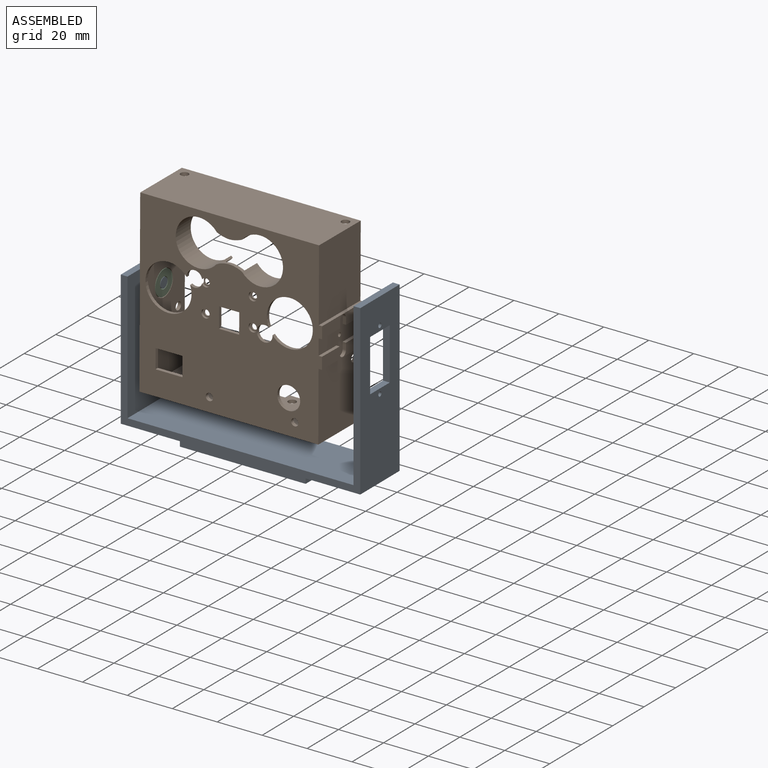
[diagram: assembled view]
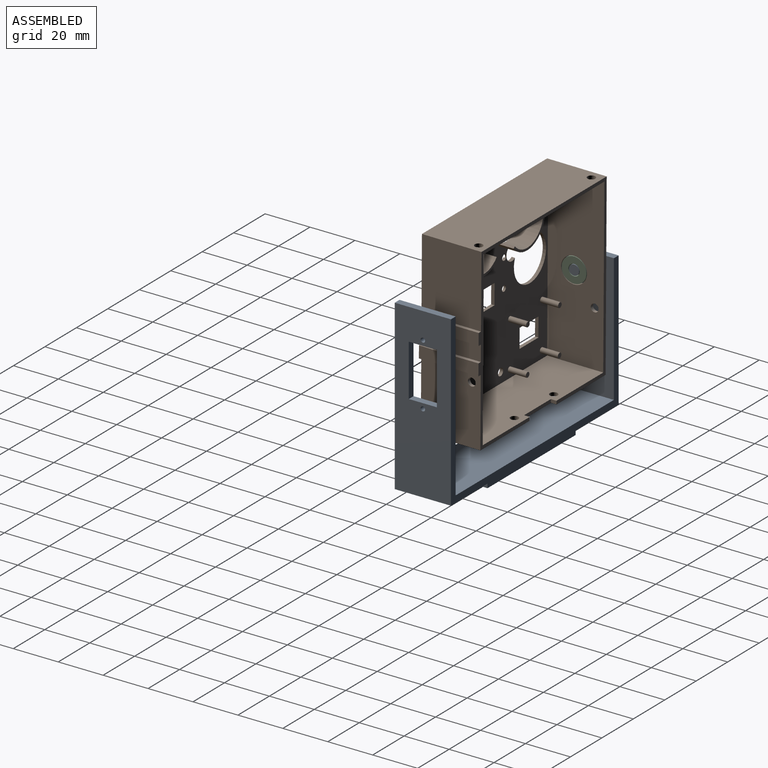
[diagram: assembled view, second angle]
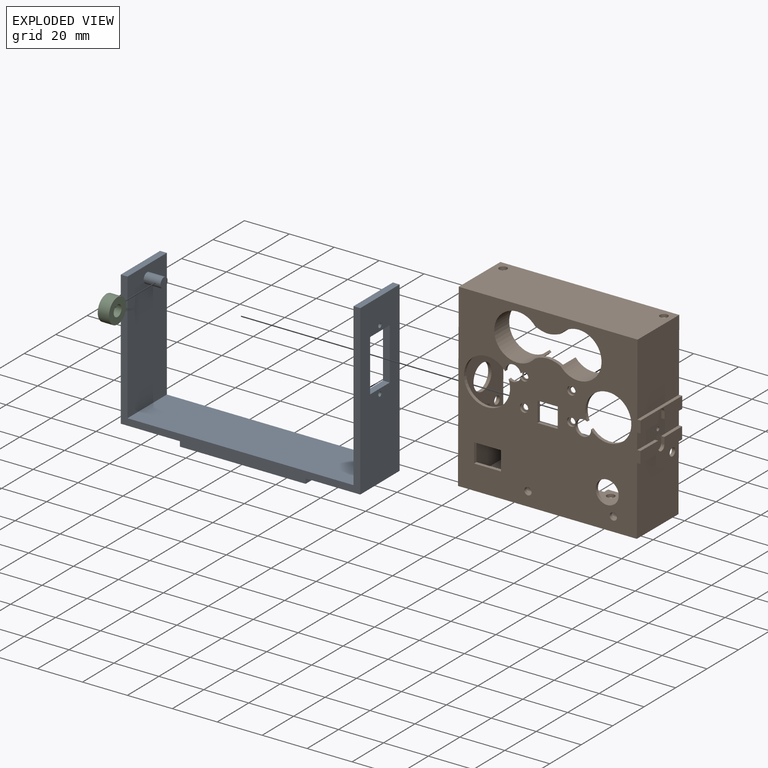
[diagram: exploded view]
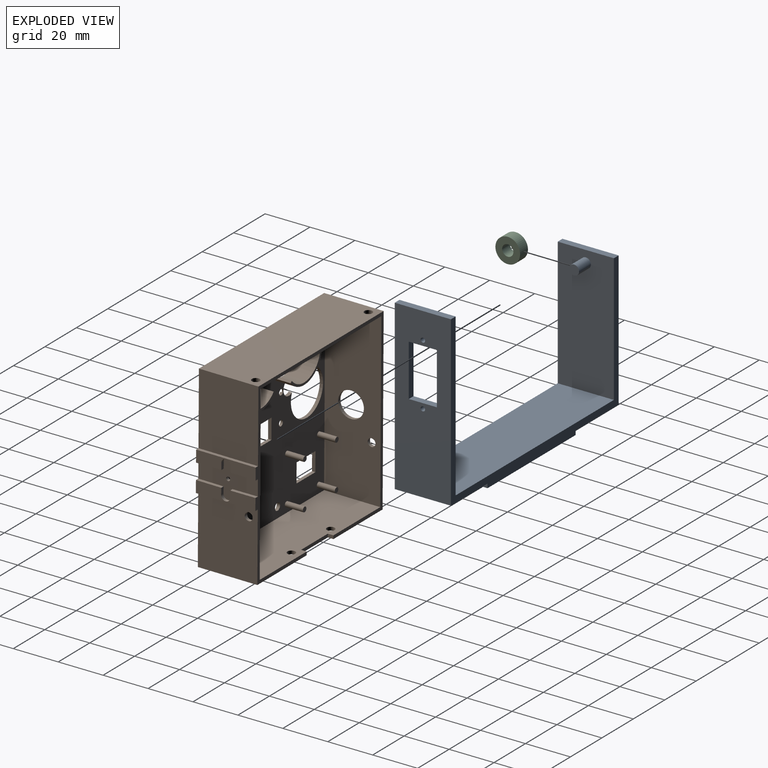
[diagram: exploded view, second angle]
ASSEMBLY  parts=3 mates=2
PART A: 28 faces, bbox 106.6x25x78 mm
  f0: plane 106.62x25mm, normal (0,0,-1), area 1425.2mm2, adj f1,f3,f8,f9,f21,f22,f23,f24
  f1: plane 75x25mm, normal (1,0,0), area 1580.3mm2, adj f0,f4,f8,f9,f12,f13,f14,f15
  f2: plane 72x25mm, normal (-1,0,0), area 1505.3mm2, adj f4,f5,f8,f9,f12,f13,f14,f15
  f3: plane 60x25mm, normal (-1,0,0), area 1500mm2, adj f0,f7,f8,f9
  f4: plane 25x3mm, normal (0,0,1), area 75mm2, adj f1,f2,f8,f9
  f5: plane 100.62x25mm, normal (0,0,1), area 2515.6mm2, adj f2,f6,f8,f9
  f6: plane 57x25mm, normal (1,0,0), area 1409.1mm2, adj f5,f7,f8,f9,f10
  f7: plane 25x3mm, normal (0,0,1), area 75mm2, adj f3,f6,f8,f9
  f8: plane 106.62x75mm, normal (0,-1,0), area 706.9mm2, adj f0,f1,f2,f3,f4,f5,f6,f7
  f9: plane 106.62x75mm, normal (0,1,0), area 706.9mm2, adj f0,f1,f2,f3,f4,f5,f6,f7
  f10: cylinder r=2.25mm len=7.5mm, axis (-1,0,0), area 106mm2, adj f6,f11
  f11: plane 4.5x4.5mm, normal (1,0,0), area 15.9mm2, adj f10
  f12: plane 23.07x3mm, normal (0,-1,0), area 69.2mm2, adj f1,f2,f13,f15
  f13: plane 12.5x3mm, normal (0,0,-1), area 37.5mm2, adj f1,f2,f12,f14
  f14: plane 23.07x3mm, normal (0,1,0), area 69.2mm2, adj f1,f2,f13,f15
  f15: plane 12.5x3mm, normal (0,0,1), area 37.5mm2, adj f1,f2,f12,f14
  f16: cylinder r=1mm len=3mm, axis (1,0,0), area 18.8mm2, adj f1,f2
  f17: cylinder r=1mm len=3mm, axis (1,0,0), area 18.8mm2, adj f1,f2
  f18: plane 50x3mm, normal (0,-1,0), area 150mm2, adj f19,f25,f26,f27
  f19: plane 16.15x3mm, normal (1,0,0), area 48.5mm2, adj f18,f20,f26,f27
  f20: plane 50x3mm, normal (0,1,0), area 150mm2, adj f19,f25,f26,f27
  f21: plane 56x3mm, normal (0,-1,0), area 168mm2, adj f0,f22,f24,f26
  f22: plane 22.15x3mm, normal (-1,0,0), area 66.5mm2, adj f0,f21,f23,f26
  f23: plane 56x3mm, normal (0,1,0), area 168mm2, adj f0,f22,f24,f26
  f24: plane 22.15x3mm, normal (1,0,0), area 66.5mm2, adj f0,f21,f23,f26
  f25: plane 16.15x3mm, normal (-1,0,0), area 48.5mm2, adj f18,f20,f26,f27
  f26: plane 56x22.15mm, normal (0,0,-1), area 432.9mm2, adj f18,f19,f20,f21,f22,f23,f24,f25
  f27: plane 50x16.15mm, normal (0,0,-1), area 807.5mm2, adj f18,f19,f20,f25
PART B: 93 faces, bbox 81.1x26.5x80 mm
  f0: plane 81.12x79.98mm, normal (0,-1,0), area 4578.4mm2, adj f1,f7,f8,f9,f10,f11,f12,f13
  f1: plane 26.5x5.25mm, normal (1,0,0), area 120mm2, adj f0,f58,f70,f73,f74,f75,f76,f77
  f2: plane 76.98x76.62mm, normal (0,1,0), area 3995.7mm2, adj f3,f4,f5,f6,f7,f8,f9,f10
  f3: cylinder r=1.25mm len=2.5mm, axis (0,1,0), area 3.9mm2, adj f2,f37
  f4: cylinder r=1.25mm len=2.5mm, axis (0,1,0), area 3.9mm2, adj f2,f41
  f5: cylinder r=1.25mm len=2.5mm, axis (0,1,0), area 3.9mm2, adj f2,f39
  f6: cylinder r=1.25mm len=2.5mm, axis (0,1,0), area 3.9mm2, adj f2,f35
  f7: plane 9x1.5mm, normal (-1,0,0), area 13.5mm2, adj f0,f2,f8,f26
  f8: plane 9x1.5mm, normal (0,0,1), area 13.5mm2, adj f0,f2,f7,f9
  f9: plane 9x1.5mm, normal (1,0,0), area 13.5mm2, adj f0,f2,f8,f26
  f10: plane 8.5x1.5mm, normal (1,0,0), area 12.8mm2, adj f0,f2,f11,f27
  f11: plane 12x1.5mm, normal (0,0,-1), area 18mm2, adj f0,f2,f10,f12
  f12: plane 8.5x1.5mm, normal (-1,0,0), area 12.8mm2, adj f0,f2,f11,f27
  f13: cylinder r=17.58mm len=1.5mm, axis (0,-1,0), area 1.5mm2, adj f0,f2,f14,f31
  f14: cylinder r=10.25mm len=20.5mm, axis (0,1,0), area 479.5mm2, adj f0,f13,f15,f54,f56,f57
  f15: cylinder r=10.21mm len=1.5mm, axis (0,-1,0), area 1.1mm2, adj f0,f2,f14,f16
  f16: cylinder r=8.35mm len=1.5mm, axis (0,-1,0), area 0.6mm2, adj f0,f2,f15,f17
  f17: extruded ~4.69x1.5mm, area 7.2mm2, adj f0,f2,f16,f18
  f18: plane 1.5x0.25mm, normal (0,0,1), area 0.4mm2, adj f0,f2,f17,f19
  f19: extruded ~4.44x1.5mm, area 6.9mm2, adj f0,f2,f18,f20
  f20: extruded ~1.5x1.1mm, area 1.9mm2, adj f0,f2,f19,f21
  f21: cylinder r=10.25mm len=20.5mm, axis (0,1,0), area 478.4mm2, adj f0,f20,f22,f51,f52,f53
  f22: plane 1.5x0.93mm, normal (-0.38,0,-0.93), area 1.5mm2, adj f0,f2,f21,f23
  f23: extruded ~4.69x1.5mm, area 7.2mm2, adj f0,f2,f22,f31
  f24: cylinder r=3.5mm len=7mm, axis (0,1,0), area 28.1mm2, adj f0,f2,f32
  f25: cylinder r=10.25mm len=20.5mm, axis (0,1,0), area 91.8mm2, adj f0,f2,f33
  f26: plane 9x1.5mm, normal (0,0,-1), area 13.5mm2, adj f0,f2,f7,f9
  f27: plane 12x1.5mm, normal (0,0,1), area 18mm2, adj f0,f2,f10,f12
  f28: cylinder r=1.62mm len=3.25mm, axis (0,1,0), area 15.3mm2, adj f0,f2
  f29: cylinder r=1.62mm len=3.25mm, axis (0,1,0), area 15.3mm2, adj f0,f2
  f30: cylinder r=5.12mm len=10.25mm, axis (0,1,0), area 48.3mm2, adj f0,f2
  f31: extruded ~4.69x1.5mm, area 7.2mm2, adj f0,f2,f13,f23
  f32: cylinder r=10.25mm len=20.5mm, axis (0,1,0), area 91.8mm2, adj f0,f2,f24
  f33: cylinder r=3.5mm len=7mm, axis (0,1,0), area 26.1mm2, adj f0,f2,f25,f40,f41
  f34: cylinder r=1.88mm len=3.75mm, axis (0,-1,0), area 11.8mm2, adj f0,f35
  f35: plane 3.75x3.75mm, normal (0,-1,0), area 6.1mm2, adj f6,f34
  f36: cylinder r=1.88mm len=3.75mm, axis (0,-1,0), area 11.8mm2, adj f0,f37
  f37: plane 3.75x3.75mm, normal (0,-1,0), area 6.1mm2, adj f3,f36
  f38: cylinder r=1.88mm len=3.75mm, axis (0,-1,0), area 11.8mm2, adj f0,f39
  f39: plane 3.75x3.75mm, normal (0,-1,0), area 6.1mm2, adj f5,f38
  f40: cylinder r=1.88mm len=3.75mm, axis (0,-1,0), area 9.8mm2, adj f0,f33,f41
  f41: plane 3.75x3.51mm, normal (0,-1,0), area 5.6mm2, adj f4,f33,f40
  f42: cylinder r=1.12mm len=8mm, axis (0,-1,0), area 56.5mm2, adj f2,f43
  f43: plane 2.25x2.25mm, normal (0,1,0), area 4mm2, adj f42
  f44: cylinder r=1.12mm len=8mm, axis (0,-1,0), area 56.5mm2, adj f2,f45
  f45: plane 2.25x2.25mm, normal (0,1,0), area 4mm2, adj f44
  f46: cylinder r=1.12mm len=8mm, axis (0,-1,0), area 56.5mm2, adj f2,f47
  f47: plane 2.25x2.25mm, normal (0,1,0), area 4mm2, adj f46
  f48: cylinder r=1.12mm len=8mm, axis (0,-1,0), area 56.5mm2, adj f2,f49
  f49: plane 2.25x2.25mm, normal (0,1,0), area 4mm2, adj f48
  f50: cylinder r=11.25mm len=22.5mm, axis (0,-1,0), area 441.1mm2, adj f2,f51,f52,f53
  f51: plane 8x0.72mm, normal (0.69,0,0.72), area 8mm2, adj f2,f21,f50,f53
  f52: plane 8x0.74mm, normal (0.67,0,-0.74), area 8mm2, adj f2,f21,f50,f53
  f53: plane 22.5x20.01mm, normal (0,1,0), area 52.7mm2, adj f21,f50,f51,f52
  f54: plane 8x0.72mm, normal (-0.72,0,0.69), area 8mm2, adj f2,f14,f55,f57
  f55: cylinder r=11.24mm len=22.49mm, axis (0,-1,0), area 440.7mm2, adj f2,f54,f56,f57
  f56: plane 8x0.75mm, normal (-0.75,0,-0.67), area 8mm2, adj f2,f14,f55,f57
  f57: plane 22.49x19.94mm, normal (0,1,0), area 52.5mm2, adj f14,f54,f55,f56
  f58: plane 26.5x1.5mm, normal (0,0,1), area 39.8mm2, adj f0,f1,f59,f70
  f59: plane 32.07x26.5mm, normal (1,0,0), area 849.8mm2, adj f0,f58,f60,f70
  f60: plane 79.62x26.5mm, normal (0,0,1), area 2090.8mm2, adj f0,f59,f61,f70,f84,f85
  f61: plane 79.98x26.5mm, normal (-1,0,0), area 2005.9mm2, adj f0,f60,f62,f70,f83,f87
  f62: plane 79.62x26.5mm, normal (0,0,-1), area 2048.3mm2, adj f0,f61,f63,f70,f88,f89,f90,f91
  f63: plane 30.41x26.5mm, normal (1,0,0), area 796.2mm2, adj f0,f62,f64,f70,f86
  f64: plane 26.5x1.5mm, normal (0,0,-1), area 39.8mm2, adj f0,f63,f65,f70
  f65: plane 26.5x5.25mm, normal (1,0,0), area 120mm2, adj f0,f64,f70,f71,f72,f78,f79,f80
  f66: plane 76.62x25mm, normal (0,0,1), area 1853.8mm2, adj f2,f67,f69,f70,f88,f89,f90,f91
  f67: plane 76.98x25mm, normal (1,0,0), area 1810.9mm2, adj f2,f66,f68,f70,f83,f87
  f68: plane 76.62x25mm, normal (0,0,-1), area 1896.3mm2, adj f2,f67,f69,f70,f84,f85
  f69: plane 76.98x25mm, normal (-1,0,0), area 1912.4mm2, adj f2,f66,f68,f70,f82,f86
  f70: plane 81.12x79.98mm, normal (0,1,0), area 460mm2, adj f1,f58,f59,f60,f61,f62,f63,f64
  f71: plane 2.92x1.5mm, normal (0,-1,0), area 4.4mm2, adj f65,f72,f80,f81
  f72: plane 11.25x1.5mm, normal (0,-0.01,1), area 16.9mm2, adj f65,f70,f71,f81
  f73: plane 11.25x1.5mm, normal (0,-0.01,-1), area 16.9mm2, adj f1,f70,f74,f81
  f74: plane 2.92x1.5mm, normal (0,-1,0), area 4.4mm2, adj f1,f73,f75,f81
  f75: cylinder r=2mm len=4mm, axis (1,0,0), area 9.4mm2, adj f1,f74,f76,f81
  f76: plane 2.92x1.5mm, normal (0,1,0), area 4.4mm2, adj f1,f75,f77,f81
  f77: plane 11.25x1.5mm, normal (0,0.01,-1), area 16.9mm2, adj f0,f1,f76,f81
  f78: plane 11.25x1.5mm, normal (0,0.01,1), area 16.9mm2, adj f0,f65,f79,f81
  f79: plane 2.92x1.5mm, normal (0,1,0), area 4.4mm2, adj f65,f78,f80,f81
  f80: cylinder r=2mm len=4mm, axis (1,0,0), area 9.4mm2, adj f65,f71,f79,f81
  f81: plane 26.5x17mm, normal (1,0,0), area 221.4mm2, adj f0,f70,f71,f72,f73,f74,f75,f76
  f82: cylinder r=0.88mm len=1.75mm, axis (1,0,0), area 8.2mm2, adj f69,f81
  f83: cylinder r=5.75mm len=11.5mm, axis (-1,0,0), area 54.2mm2, adj f61,f67
  f84: cylinder r=1.75mm len=3.5mm, axis (0,0,1), area 16.5mm2, adj f60,f68
  f85: cylinder r=1.75mm len=3.5mm, axis (0,0,1), area 16.5mm2, adj f60,f68
  f86: cylinder r=1.75mm len=3.5mm, axis (1,0,0), area 16.5mm2, adj f63,f69
  f87: cylinder r=1.75mm len=3.5mm, axis (1,0,0), area 16.5mm2, adj f61,f67
  f88: plane 2.5x1.5mm, normal (-1,0,0), area 3.8mm2, adj f62,f66,f70,f89
  f89: plane 17x1.5mm, normal (0,1,0), area 25.5mm2, adj f62,f66,f88,f90
  f90: plane 2.5x1.5mm, normal (1,0,0), area 3.8mm2, adj f62,f66,f70,f89
  f91: cylinder r=1.75mm len=3.5mm, axis (0,0,-1), area 16.5mm2, adj f62,f66
  f92: cylinder r=1.75mm len=3.5mm, axis (0,0,-1), area 16.5mm2, adj f62,f66
PART C: 4 faces, bbox 5x11x11 mm
  f0: plane 11x11mm, normal (1,0,0), area 75.4mm2, adj f1,f2
  f1: cylinder r=2.5mm len=5mm, axis (-1,0,0), area 78.5mm2, adj f0,f3
  f2: cylinder r=5.5mm len=11mm, axis (-1,0,0), area 172.8mm2, adj f0,f3
  f3: plane 11x11mm, normal (-1,0,0), area 75.4mm2, adj f1,f2
PLACE A t=(-16.68,-26.06,-54.65)mm fixed
PLACE B rot(axis=(-1,0,0),0.4deg) t=(-21.24,-37.79,2.68)mm
PLACE C rot(axis=(-1,0,0),0.4deg) t=(-21.24,-37.79,2.68)mm
MATE revolute C.f1 <-> A.f10  axis (1,0,0) through (-59.49,-26.06,0.1)mm
MATE fastened B.f82 <-> C.f1  axis (1,0,0) through (-59.49,-26.06,0.1)mm
